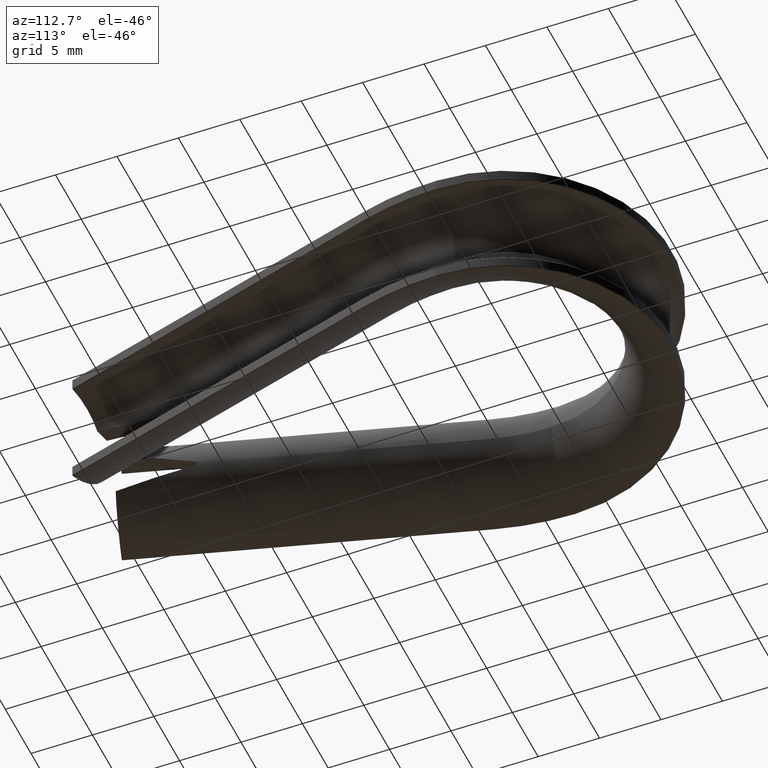
[diagram: clean part render]
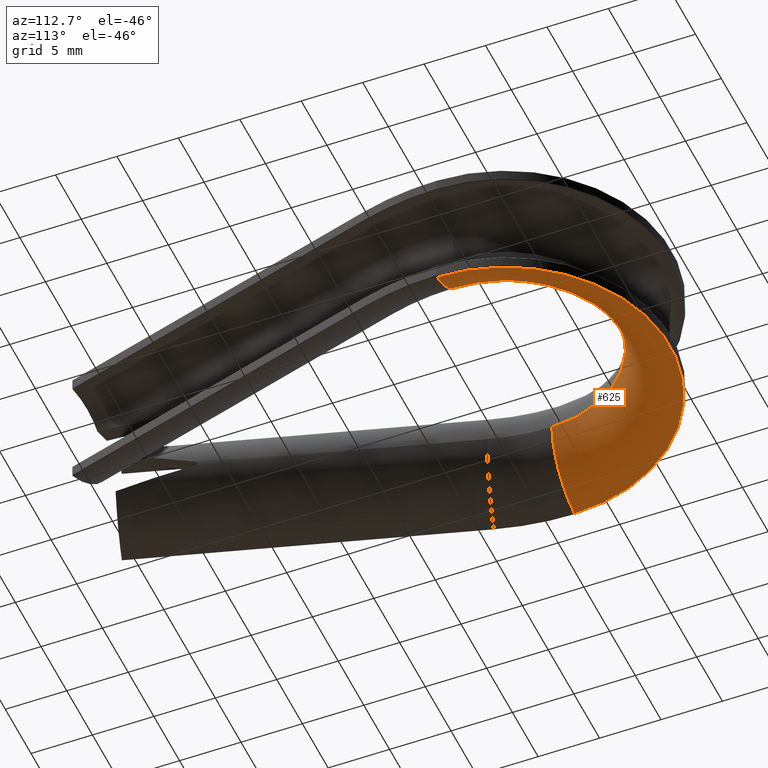
[diagram: same view with one face highlighted and labeled with its STEP entity id]
A machine part, auxiliary view. The second image highlights one B-rep face of the part: STEP entity #625.
In plain terms, the highlighted toroidal blend (fillet) surface has major radius 14.25 mm and minor (blend) radius 5.25 mm.
Its self-contained STEP definition (entity closure, byte-faithful):
#162 = EDGE_CURVE ( 'NONE', #12419, #3274, #6333, .T. ) ;
#197 = VERTEX_POINT ( 'NONE', #10401 ) ;
#213 = ORIENTED_EDGE ( 'NONE', *, *, #162, .F. ) ;
#580 = DIRECTION ( 'NONE',  ( -0.0000000000000000000, -0.0000000000000000000, -1.000000000000000000 ) ) ;
#625 = ADVANCED_FACE ( 'NONE', ( #1869 ), #4754, .T. ) ;
#1649 = CARTESIAN_POINT ( 'NONE',  ( 0.0000000000000000000, 32.00000000000000000, -5.177998584139624300 ) ) ;
#1869 = FACE_OUTER_BOUND ( 'NONE', #7957, .T. ) ;
#2510 = DIRECTION ( 'NONE',  ( 1.000000000000000000, 0.0000000000000000000, 0.0000000000000000000 ) ) ;
#2662 = CIRCLE ( 'NONE', #10654, 8.999999999999998200 ) ;
#2804 = DIRECTION ( 'NONE',  ( 0.0000000000000000000, 0.0000000000000000000, -1.000000000000000000 ) ) ;
#3060 = AXIS2_PLACEMENT_3D ( 'NONE', #11668, #10292, #2804 ) ;
#3155 = AXIS2_PLACEMENT_3D ( 'NONE', #15132, #6409, #5129 ) ;
#3274 = VERTEX_POINT ( 'NONE', #13823 ) ;
#3507 = ORIENTED_EDGE ( 'NONE', *, *, #14837, .T. ) ;
#4754 = TOROIDAL_SURFACE ( 'NONE', #3155, 14.24999999999999800, 5.250000000000000000 ) ;
#5129 = DIRECTION ( 'NONE',  ( 1.000000000000000000, 0.0000000000000000000, 0.0000000000000000000 ) ) ;
#5479 = DIRECTION ( 'NONE',  ( -1.608122649676636600E-016, 1.000000000000000000, -0.0000000000000000000 ) ) ;
#5992 = VERTEX_POINT ( 'NONE', #12558 ) ;
#6200 = AXIS2_PLACEMENT_3D ( 'NONE', #1649, #580, #6650 ) ;
#6333 = CIRCLE ( 'NONE', #3060, 5.250000000000000000 ) ;
#6409 = DIRECTION ( 'NONE',  ( 0.0000000000000000000, 0.0000000000000000000, 1.000000000000000000 ) ) ;
#6650 = DIRECTION ( 'NONE',  ( 1.000000000000000000, 0.0000000000000000000, 0.0000000000000000000 ) ) ;
#7655 = CARTESIAN_POINT ( 'NONE',  ( 8.999999999999998200, 32.00000000000000000, 6.429395695523603200E-016 ) ) ;
#7957 = EDGE_LOOP ( 'NONE', ( #213, #12768, #13549, #3507 ) ) ;
#7980 = CIRCLE ( 'NONE', #6200, 13.38349514563111400 ) ;
#9696 = EDGE_CURVE ( 'NONE', #5992, #197, #14593, .T. ) ;
#9746 = DIRECTION ( 'NONE',  ( 0.0000000000000000000, 0.0000000000000000000, 1.000000000000000000 ) ) ;
#10292 = DIRECTION ( 'NONE',  ( -1.608122649676636600E-016, -1.000000000000000000, 0.0000000000000000000 ) ) ;
#10401 = CARTESIAN_POINT ( 'NONE',  ( -13.38349514563018900, 32.00000000000000000, -5.177998584139624300 ) ) ;
#10654 = AXIS2_PLACEMENT_3D ( 'NONE', #16002, #9746, #2510 ) ;
#11129 = EDGE_CURVE ( 'NONE', #12419, #5992, #2662, .T. ) ;
#11668 = CARTESIAN_POINT ( 'NONE',  ( 14.24999999999999800, 32.00000000000000000, 0.0000000000000000000 ) ) ;
#12419 = VERTEX_POINT ( 'NONE', #7655 ) ;
#12558 = CARTESIAN_POINT ( 'NONE',  ( -8.999999999999998200, 32.00000000000000000, -6.429395695523603200E-016 ) ) ;
#12768 = ORIENTED_EDGE ( 'NONE', *, *, #11129, .T. ) ;
#12912 = CARTESIAN_POINT ( 'NONE',  ( -14.24999999999999800, 32.00000000000000000, 0.0000000000000000000 ) ) ;
#13549 = ORIENTED_EDGE ( 'NONE', *, *, #9696, .T. ) ;
#13823 = CARTESIAN_POINT ( 'NONE',  ( 13.38349514563018900, 32.00000000000000000, -5.177998584139624300 ) ) ;
#14156 = DIRECTION ( 'NONE',  ( 0.0000000000000000000, 0.0000000000000000000, -1.000000000000000000 ) ) ;
#14593 = CIRCLE ( 'NONE', #15419, 5.250000000000000000 ) ;
#14837 = EDGE_CURVE ( 'NONE', #197, #3274, #7980, .T. ) ;
#15132 = CARTESIAN_POINT ( 'NONE',  ( 0.0000000000000000000, 32.00000000000000000, 0.0000000000000000000 ) ) ;
#15419 = AXIS2_PLACEMENT_3D ( 'NONE', #12912, #5479, #14156 ) ;
#16002 = CARTESIAN_POINT ( 'NONE',  ( 0.0000000000000000000, 32.00000000000000000, -6.429395695523604200E-016 ) ) ;